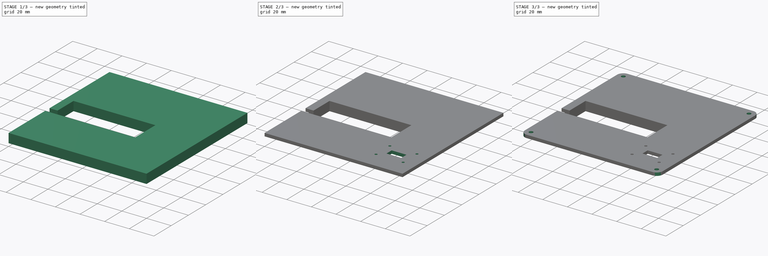
[diagram: build sequence overview — one tinted view per stage of 3, left to right]
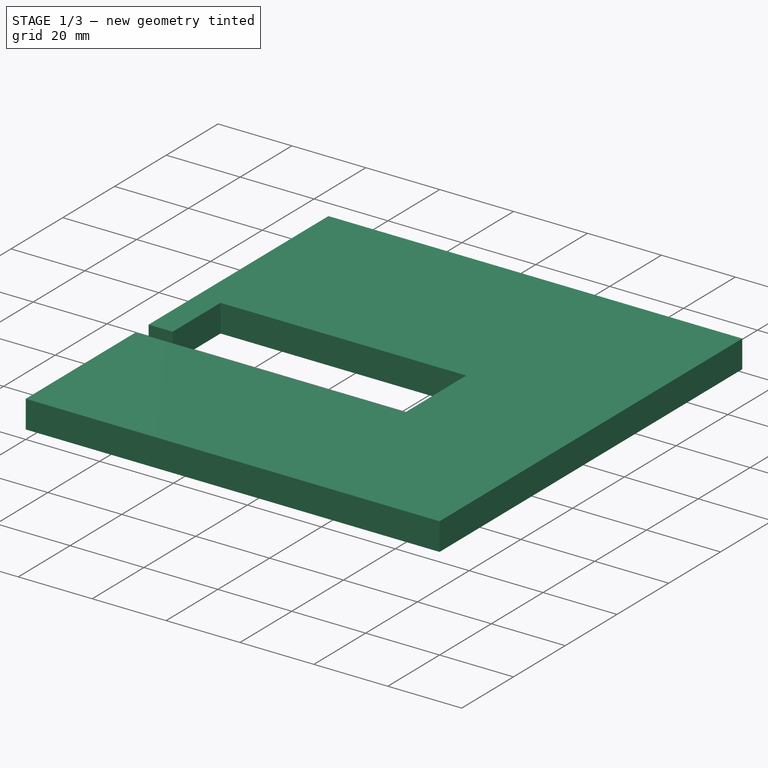
[diagram: stage 1 of 3 — iso view after this stage's code; geometry added in this stage tinted green]
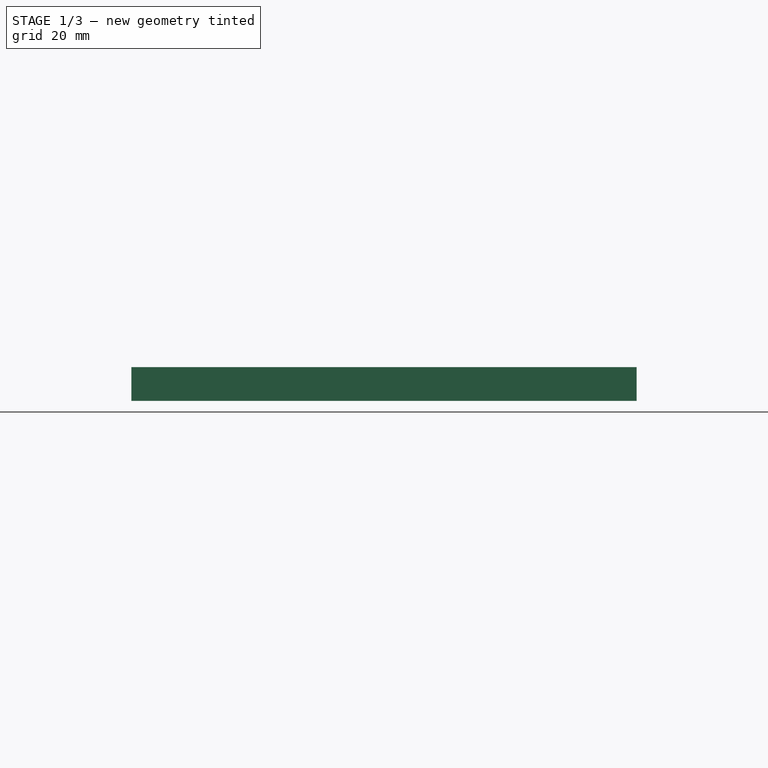
[diagram: stage 1 of 3 — front view after this stage's code; geometry added in this stage tinted green]
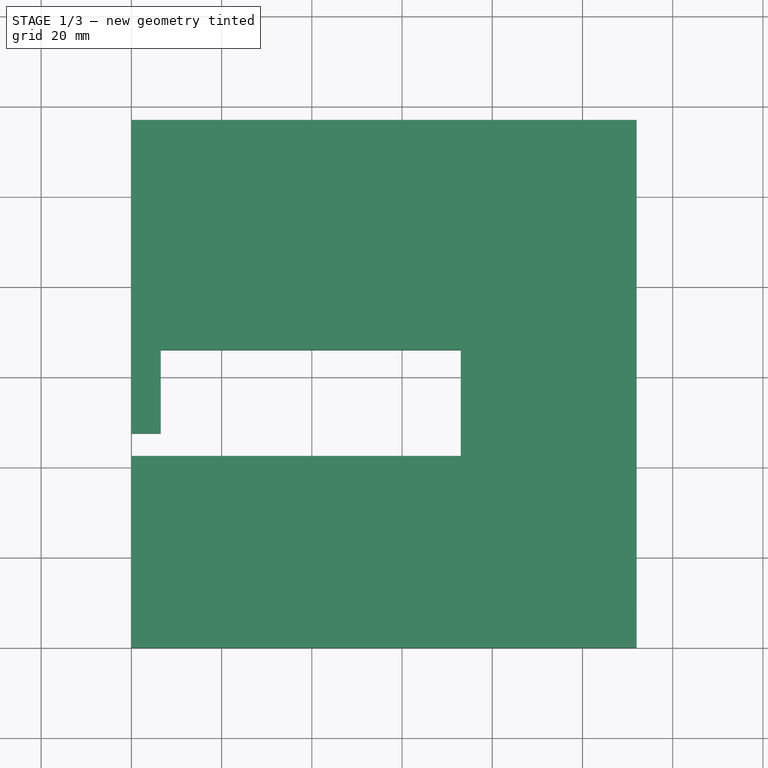
[diagram: stage 1 of 3 — top view after this stage's code; geometry added in this stage tinted green]
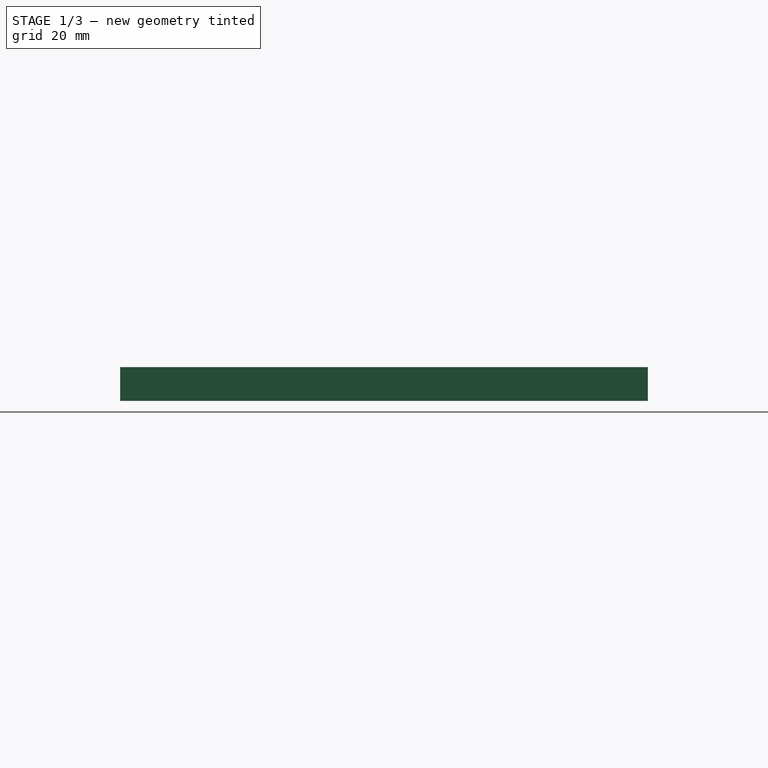
[diagram: stage 1 of 3 — right view after this stage's code; geometry added in this stage tinted green]
FCSTD DOCUMENT  (FreeCAD 0.18R16146 (Git))
Label: lid
License: All rights reserved
LicenseURL: http://en.wikipedia.org/wiki/All_rights_reserved
objects: Sketcher::SketchObject×5, PartDesign::Pocket×4, PartDesign::Pad×1, PartDesign::Fillet×1, PartDesign::Body×1
note: 17 computed .brp shape members not serialized (recipe doc carries the construction recipe); baked Part::Feature solids carry a one-line shape summary decoded from their .brp

FEATURE [Sketcher::SketchObject] Sketch
  MapMode = 5
  Support = -> [XY_Plane]
  sketch-geometry (4):
    g0: LineSegment StartX=0 StartY=0 StartZ=0 EndX=112 EndY=0 EndZ=0
    g1: LineSegment StartX=112 StartY=0 StartZ=0 EndX=112 EndY=117 EndZ=0
    g2: LineSegment StartX=112 StartY=117 StartZ=0 EndX=0 EndY=117 EndZ=0
    g3: LineSegment StartX=0 StartY=117 StartZ=0 EndX=0 EndY=0 EndZ=0
  constraints (11):
    c: Coincident(g0,g1)
    c: Coincident(g1,g2)
    c: Coincident(g2,g3)
    c: Coincident(g3,g0)
    c: Horizontal(g0)
    c: Horizontal(g2)
    c: Vertical(g1)
    c: Vertical(g3)
    c: Coincident(g0,g-1)
    c: DistanceX(g0,g0) = 112
    c: DistanceY(g1,g1) = 117
FEATURE [PartDesign::Pad] Pad
  Length = 7.5
  Length2 = 100
  Profile = -> Sketch
  Type = 0
FEATURE [Sketcher::SketchObject] Sketch001
  MapMode = 5
  Placement = pos=(0,0,7.5) rot=(0,0,1;0rad)
  Support = -> [Pad]
  sketch-geometry (6):
    g0: LineSegment StartX=6.5 StartY=66 StartZ=0 EndX=73 EndY=66 EndZ=0
    g1: LineSegment StartX=73 StartY=66 StartZ=0 EndX=73 EndY=42.5 EndZ=0
    g2: LineSegment StartX=73 StartY=42.5 StartZ=0 EndX=0 EndY=42.5 EndZ=0
    g3: LineSegment StartX=6.5 StartY=66 StartZ=0 EndX=6.5 EndY=47.5 EndZ=0
    g4: LineSegment StartX=6.5 StartY=47.5 StartZ=0 EndX=0 EndY=47.5 EndZ=0
    g5: LineSegment StartX=0 StartY=47.5 StartZ=0 EndX=0 EndY=42.5 EndZ=0
  constraints (18):
    c: Coincident(g0,g1)
    c: Horizontal(g0)
    c: Horizontal(g2)
    c: Vertical(g1)
    c: Coincident(g0,g3)
    c: Vertical(g3)
    c: Coincident(g3,g4)
    c: Horizontal(g4)
    c: Coincident(g4,g5)
    c: Vertical(g5)
    c: Coincident(g2,g5)
    c: Coincident(g1,g2)
    c: DistanceY(g2) = 42.5
    c: DistanceY(g1,g1) = 23.5
    c: DistanceX(g0,g0) = 66.5
    c: DistanceY(g5,g5) = 5
    c: DistanceX(g1) = 73
    c: DistanceX(g2) = 0
FEATURE [PartDesign::Pocket] Pocket
  BaseFeature = -> Pad
  Length = 5
  Length2 = 100
  Profile = -> Sketch001
  Type = 1
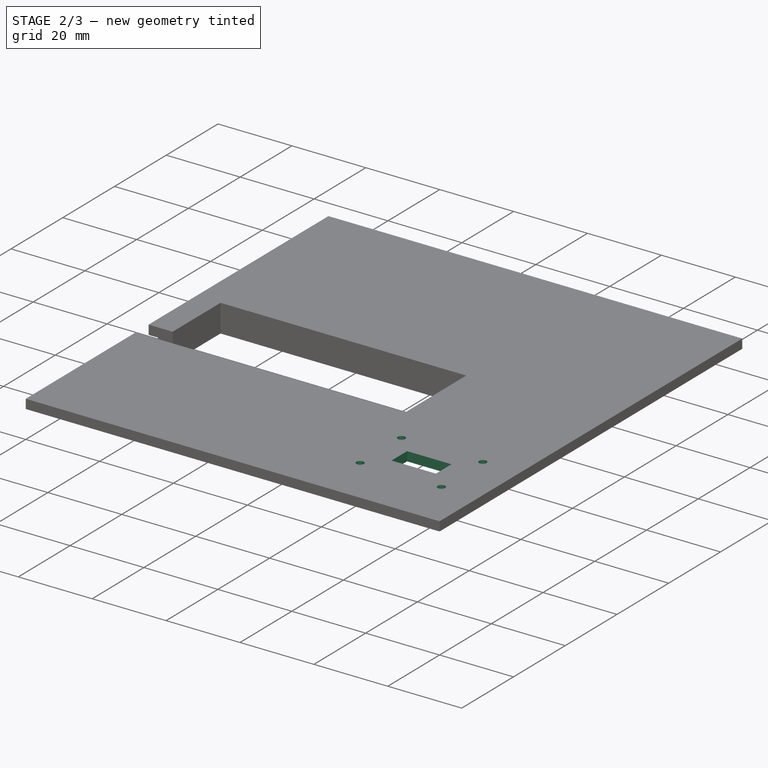
[diagram: stage 2 of 3 — iso view after this stage's code; geometry added in this stage tinted green]
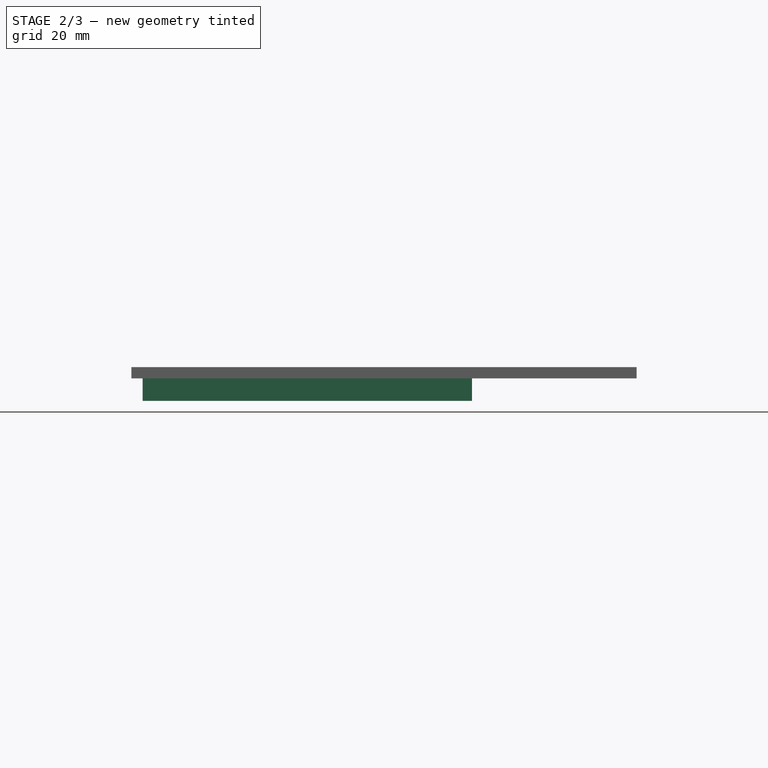
[diagram: stage 2 of 3 — front view after this stage's code; geometry added in this stage tinted green]
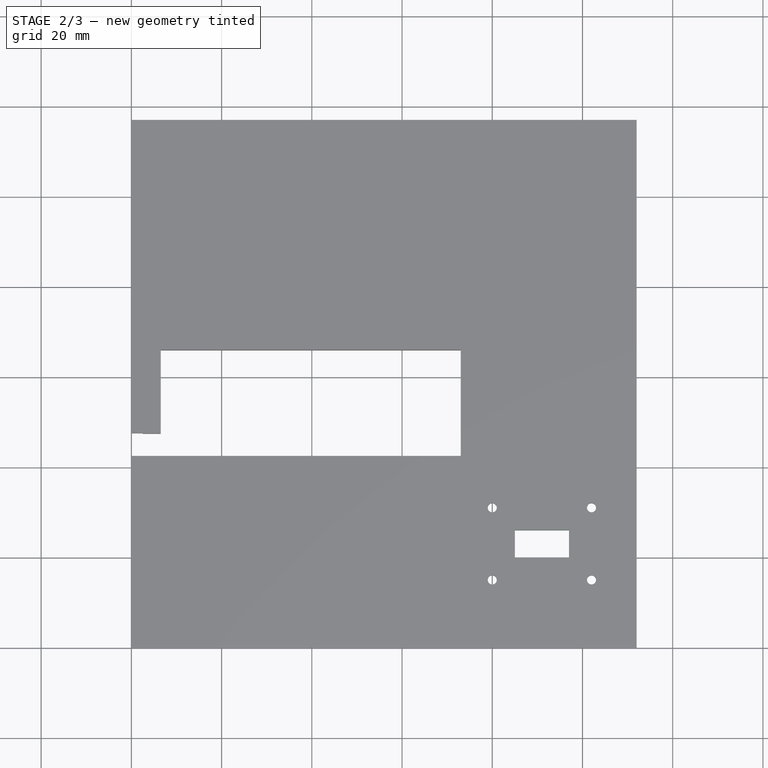
[diagram: stage 2 of 3 — top view after this stage's code; geometry added in this stage tinted green]
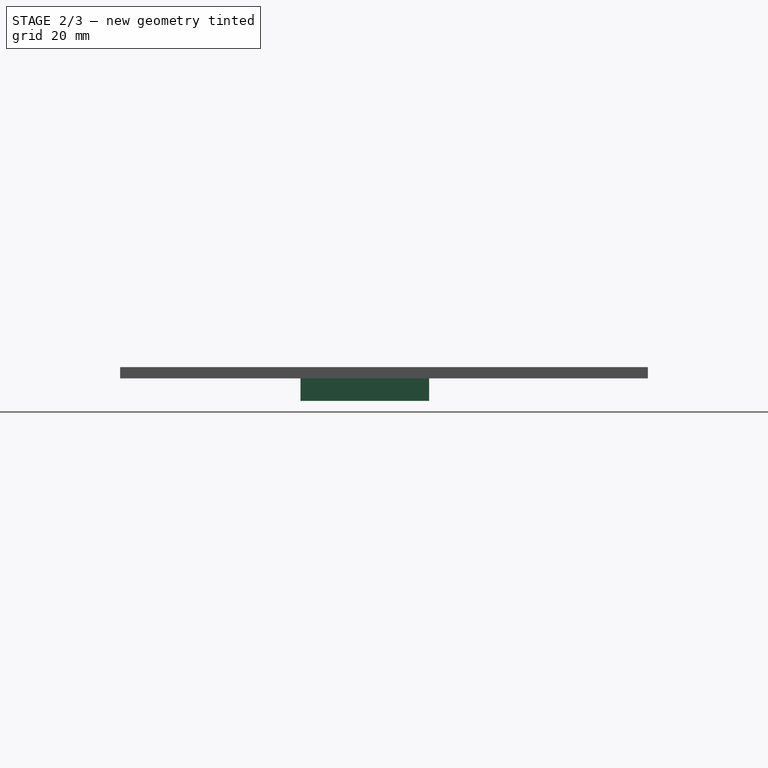
[diagram: stage 2 of 3 — right view after this stage's code; geometry added in this stage tinted green]
FEATURE [Sketcher::SketchObject] Sketch002
  MapMode = 5
  Placement = pos=(0,0,0) rot=(1,0,0;3.14159rad)
  Support = -> [Pocket]
  sketch-geometry (14):
    g0: LineSegment StartX=0 StartY=0 StartZ=0 EndX=112 EndY=0 EndZ=0
    g1: LineSegment StartX=112 StartY=0 StartZ=0 EndX=112 EndY=-117 EndZ=0
    g2: LineSegment StartX=112 StartY=-117 StartZ=0 EndX=0 EndY=-117 EndZ=0
    g3: LineSegment StartX=0 StartY=-117 StartZ=0 EndX=0 EndY=-47.5 EndZ=0
    g4: LineSegment StartX=4 StartY=-50 StartZ=0 EndX=4 EndY=-68.5 EndZ=0
    g5: LineSegment StartX=4 StartY=-68.5 StartZ=0 EndX=75.5 EndY=-68.5 EndZ=0
    g6: LineSegment StartX=75.5 StartY=-68.5 StartZ=0 EndX=75.5 EndY=-40 EndZ=0
    g7: LineSegment StartX=0 StartY=-42.5 StartZ=0 EndX=0 EndY=0 EndZ=0
    g8: LineSegment StartX=0 StartY=-42.5 StartZ=0 EndX=2.5 EndY=-42.5 EndZ=0
    g9: LineSegment StartX=2.5 StartY=-42.5 StartZ=0 EndX=2.5 EndY=-40 EndZ=0
    g10: LineSegment StartX=2.5 StartY=-40 StartZ=0 EndX=75.5 EndY=-40 EndZ=0
    g11: LineSegment StartX=0 StartY=-47.5 StartZ=0 EndX=2.5 EndY=-47.5 EndZ=0
    g12: LineSegment StartX=2.5 StartY=-47.5 StartZ=0 EndX=2.5 EndY=-50 EndZ=0
    g13: LineSegment StartX=2.5 StartY=-50 StartZ=0 EndX=4 EndY=-50 EndZ=0
  constraints (41):
    c: Coincident(g-1,g0)
    c: Horizontal(g0)
    c: Coincident(g0,g1)
    c: Vertical(g1)
    c: Coincident(g1,g2)
    c: Horizontal(g2)
    c: Coincident(g2,g3)
    c: Vertical(g3)
    c: Vertical(g4)
    c: Coincident(g4,g5)
    c: Horizontal(g5)
    c: Coincident(g5,g6)
    c: Vertical(g6)
    c: Coincident(g7,g0)
    c: Vertical(g7)
    c: DistanceX(g0,g0) = 112
    c: DistanceY(g1,g1) = 117
    c: DistanceX(g3) = 0
    c: Coincident(g8,g7)
    c: Horizontal(g8)
    c: Coincident(g9,g8)
    c: Vertical(g9)
    c: Coincident(g10,g9)
    c: Coincident(g10,g6)
    c: Horizontal(g10)
    c: Coincident(g11,g3)
    c: Horizontal(g11)
    c: Coincident(g12,g11)
    c: Vertical(g12)
    c: Coincident(g13,g12)
    c: Coincident(g13,g4)
    c: Horizontal(g13)
    c: DistanceY(g3,g7) = 5
    c: DistanceY(g7,g0) = 42.5
    c: DistanceX(g8,g8) = 2.5
    c: Equal(g11,g8)
    c: DistanceY(g9,g9) = 2.5
    c: Equal(g9,g12)
    c: DistanceX(g5,g5) = 71.5
    c: DistanceY(g6,g6) = 28.5
    c: DistanceX(g10,g10) = 73
FEATURE [PartDesign::Pocket] Pocket001
  BaseFeature = -> Pocket
  Length = 5
  Length2 = 100
  Profile = -> Sketch002
  Type = 0
FEATURE [Sketcher::SketchObject] Sketch003
  MapMode = 5
  Placement = pos=(0,0,7.5) rot=(0,0,1;0rad)
  Support = -> [Pocket001]
  sketch-geometry (12):
    g0: LineSegment StartX=85 StartY=26 StartZ=0 EndX=97 EndY=26 EndZ=0
    g1: LineSegment StartX=97 StartY=26 StartZ=0 EndX=97 EndY=20 EndZ=0
    g2: LineSegment StartX=97 StartY=20 StartZ=0 EndX=85 EndY=20 EndZ=0
    g3: LineSegment StartX=85 StartY=20 StartZ=0 EndX=85 EndY=26 EndZ=0
    g4: LineSegment [constr] StartX=80 StartY=31 StartZ=0 EndX=102 EndY=31 EndZ=0
    g5: LineSegment [constr] StartX=102 StartY=31 StartZ=0 EndX=102 EndY=15 EndZ=0
    g6: LineSegment [constr] StartX=102 StartY=15 StartZ=0 EndX=80 EndY=15 EndZ=0
    g7: LineSegment [constr] StartX=80 StartY=15 StartZ=0 EndX=80 EndY=31 EndZ=0
    g8: Circle CenterX=80 CenterY=31 CenterZ=0 NormalX=0 NormalY=0 NormalZ=1 AngleXU=0 Radius=1
    g9: Circle CenterX=102 CenterY=31 CenterZ=0 NormalX=0 NormalY=0 NormalZ=1 AngleXU=0 Radius=1
    g10: Circle CenterX=102 CenterY=15 CenterZ=0 NormalX=0 NormalY=0 NormalZ=1 AngleXU=0 Radius=1
    g11: Circle CenterX=80 CenterY=15 CenterZ=0 NormalX=0 NormalY=0 NormalZ=1 AngleXU=0 Radius=1
  constraints (32):
    c: Coincident(g0,g1)
    c: Coincident(g1,g2)
    c: Coincident(g2,g3)
    c: Coincident(g3,g0)
    c: Horizontal(g0)
    c: Horizontal(g2)
    c: Vertical(g1)
    c: Vertical(g3)
    c: DistanceY(g1,g1) = 6
    c: DistanceX(g0,g0) = 12
    c: DistanceY(g2) = 20
    c: DistanceX(g2) = 85
    c: Coincident(g4,g5)
    c: Coincident(g5,g6)
    c: Coincident(g6,g7)
    c: Coincident(g7,g4)
    c: Horizontal(g4)
    c: Horizontal(g6)
    c: Vertical(g5)
    c: Vertical(g7)
    c: DistanceX(g4,g4) = 22
    c: DistanceY(g5,g5) = 16
    c: DistanceX(g6,g2) = 5
    c: DistanceY(g6,g2) = 5
    c: Coincident(g8,g4)
    c: Coincident(g9,g4)
    c: Coincident(g10,g5)
    c: Coincident(g11,g6)
    c: Equal(g11,g10)
    c: Equal(g10,g9)
    c: Equal(g9,g8)
    c: Radius(g9) = 1
FEATURE [PartDesign::Pocket] Pocket002
  BaseFeature = -> Pocket001
  Length = 5
  Length2 = 100
  Profile = -> Sketch003
  Type = 0
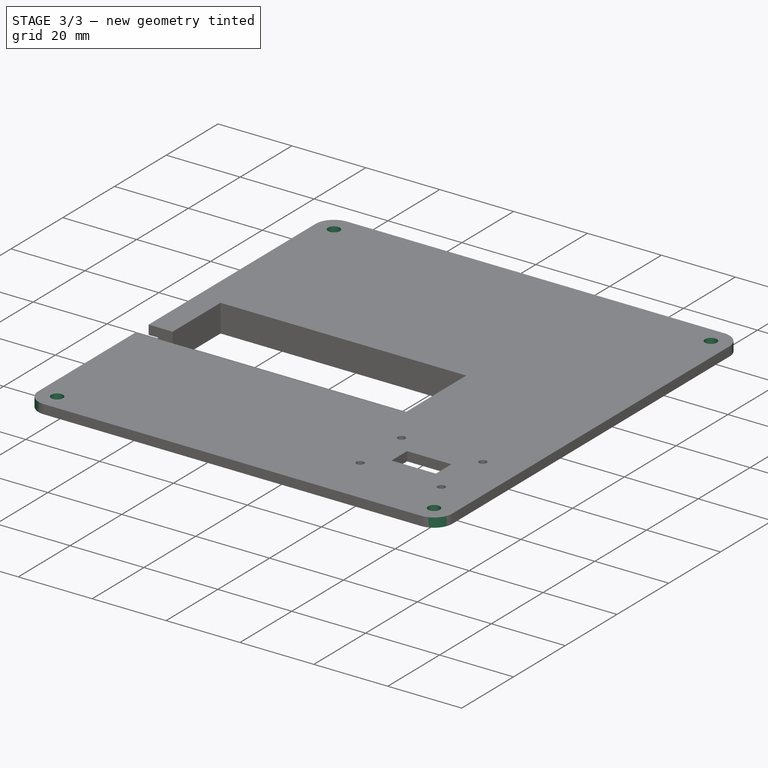
[diagram: stage 3 of 3 — iso view after this stage's code; geometry added in this stage tinted green]
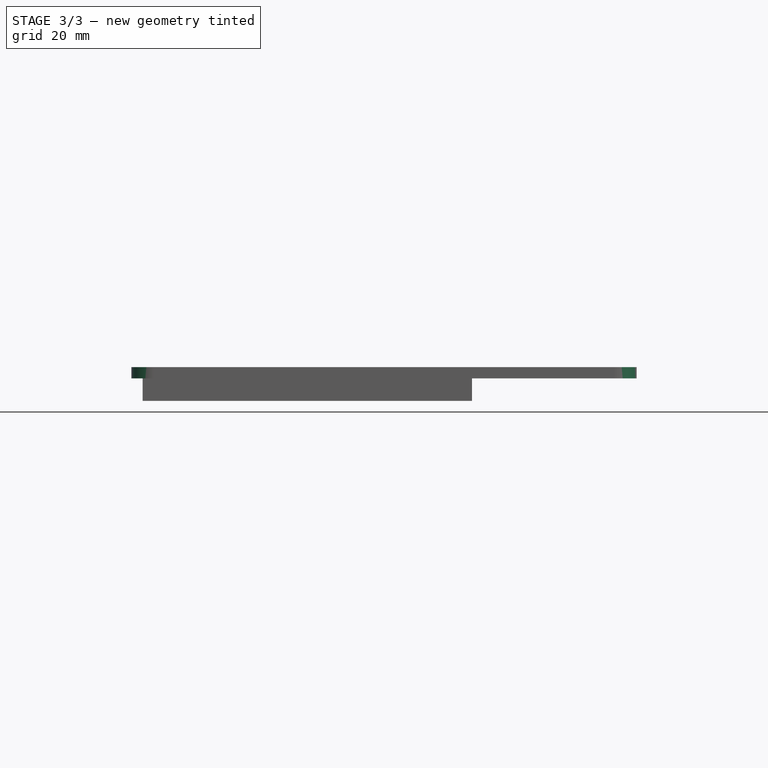
[diagram: stage 3 of 3 — front view after this stage's code; geometry added in this stage tinted green]
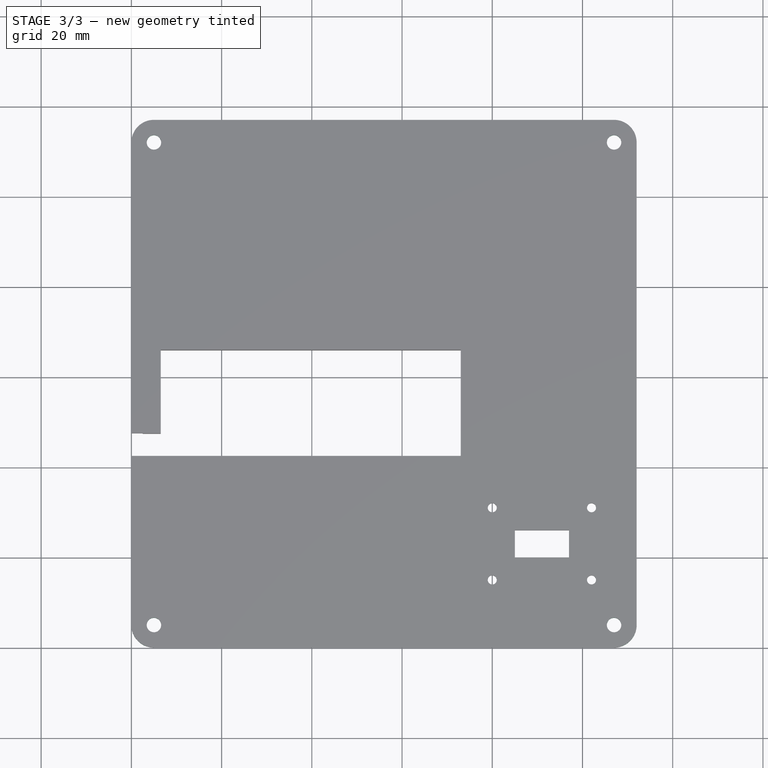
[diagram: stage 3 of 3 — top view after this stage's code; geometry added in this stage tinted green]
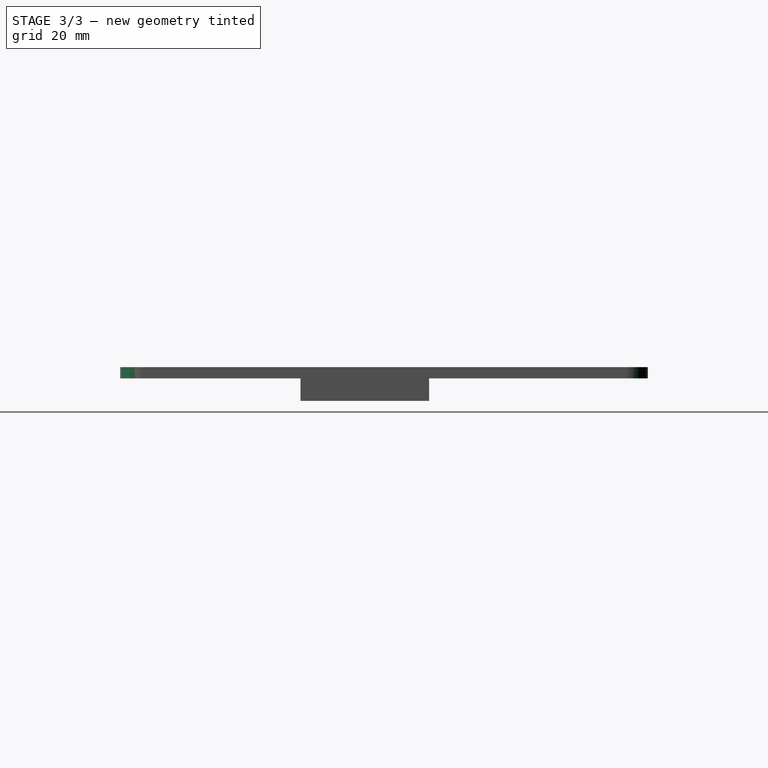
[diagram: stage 3 of 3 — right view after this stage's code; geometry added in this stage tinted green]
FEATURE [Sketcher::SketchObject] Sketch004
  MapMode = 5
  Placement = pos=(0,0,7.5) rot=(0,0,1;0rad)
  Support = -> [Pocket002]
  sketch-geometry (8):
    g0: LineSegment [constr] StartX=5 StartY=112 StartZ=0 EndX=107 EndY=112 EndZ=0
    g1: LineSegment [constr] StartX=107 StartY=112 StartZ=0 EndX=107 EndY=5 EndZ=0
    g2: LineSegment [constr] StartX=107 StartY=5 StartZ=0 EndX=5 EndY=5 EndZ=0
    g3: LineSegment [constr] StartX=5 StartY=5 StartZ=0 EndX=5 EndY=112 EndZ=0
    g4: Circle CenterX=5 CenterY=112 CenterZ=0 NormalX=0 NormalY=0 NormalZ=1 AngleXU=0 Radius=1.6
    g5: Circle CenterX=107 CenterY=112 CenterZ=0 NormalX=0 NormalY=0 NormalZ=1 AngleXU=0 Radius=1.6
    g6: Circle CenterX=107 CenterY=5 CenterZ=0 NormalX=0 NormalY=0 NormalZ=1 AngleXU=0 Radius=1.6
    g7: Circle CenterX=5 CenterY=5 CenterZ=0 NormalX=0 NormalY=0 NormalZ=1 AngleXU=0 Radius=1.6
  constraints (20):
    c: Coincident(g0,g1)
    c: Coincident(g1,g2)
    c: Coincident(g2,g3)
    c: Coincident(g3,g0)
    c: Horizontal(g0)
    c: Horizontal(g2)
    c: Vertical(g1)
    c: Vertical(g3)
    c: DistanceX(g2,g2) = 102
    c: DistanceY(g1,g1) = 107
    c: DistanceY(g2) = 5
    c: DistanceX(g2) = 5
    c: Coincident(g4,g0)
    c: Coincident(g5,g0)
    c: Coincident(g6,g1)
    c: Coincident(g7,g2)
    c: Equal(g7,g6)
    c: Equal(g6,g5)
    c: Equal(g5,g4)
    c: Radius(g5) = 1.6
FEATURE [PartDesign::Pocket] Pocket003
  BaseFeature = -> Pocket002
  Length = 5
  Length2 = 100
  Profile = -> Sketch004
  Type = 0
FEATURE [PartDesign::Fillet] Fillet
  Base = -> Pocket003 [Edge30,Edge60,Edge2,Edge4]
  BaseFeature = -> Pocket003
  Radius = 5
FEATURE [PartDesign::Body] Body
  Group = -> [Sketch,Pad,Sketch001,Pocket,Sketch002,Pocket001,Sketch003,Pocket002,Sketch004,Pocket003,Fillet]
  Origin = -> Origin
  Tip = -> Fillet
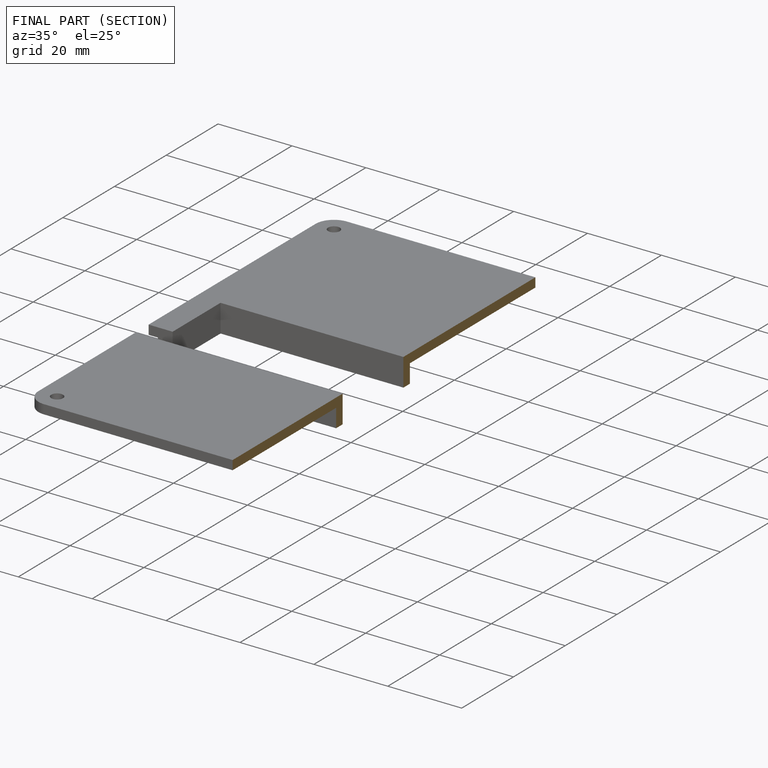
[diagram: finished part — half-section view (interior)]
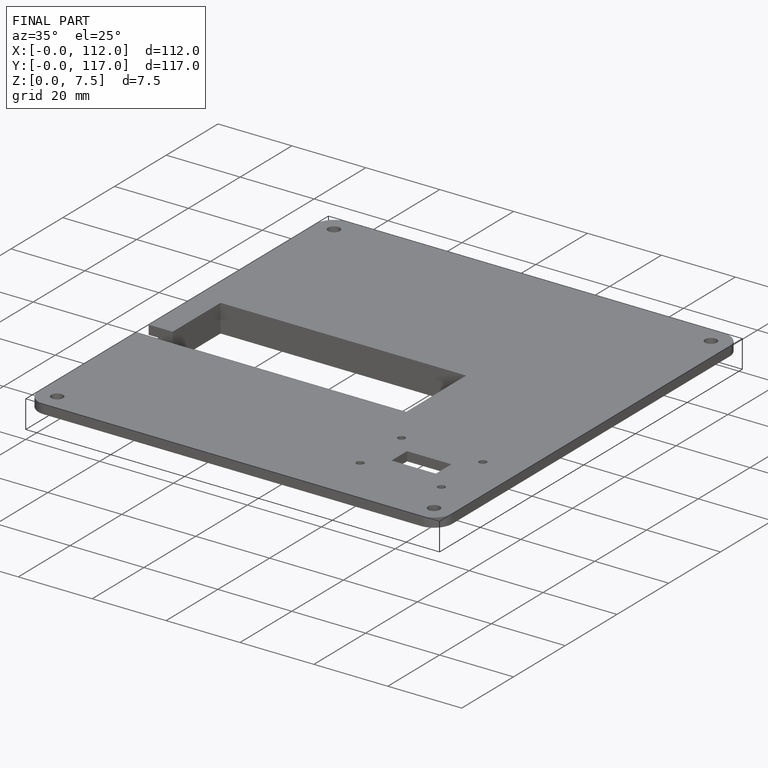
[diagram: finished part — iso view with bounding-box wireframe]
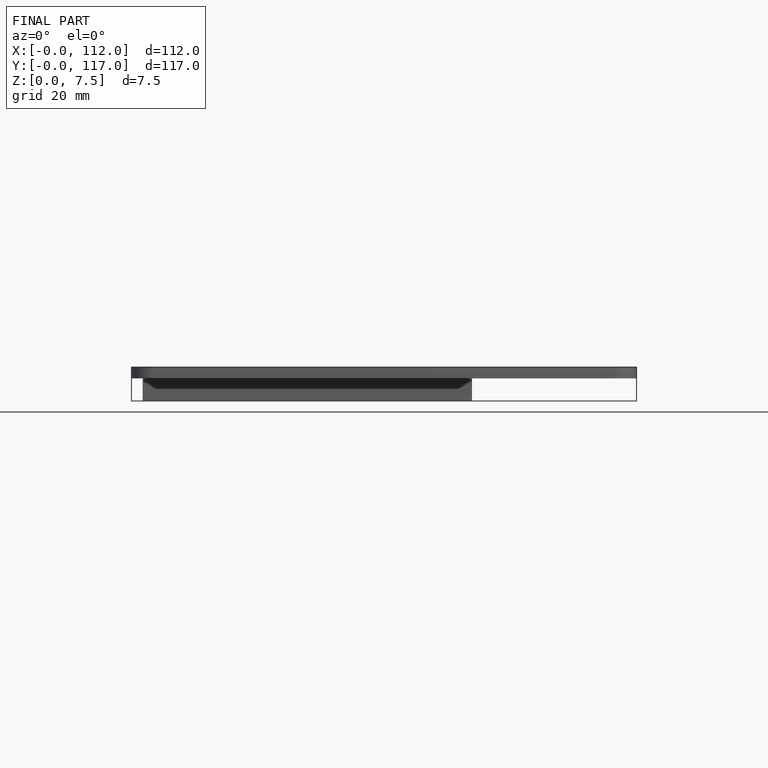
[diagram: finished part — front view with bounding-box wireframe]
